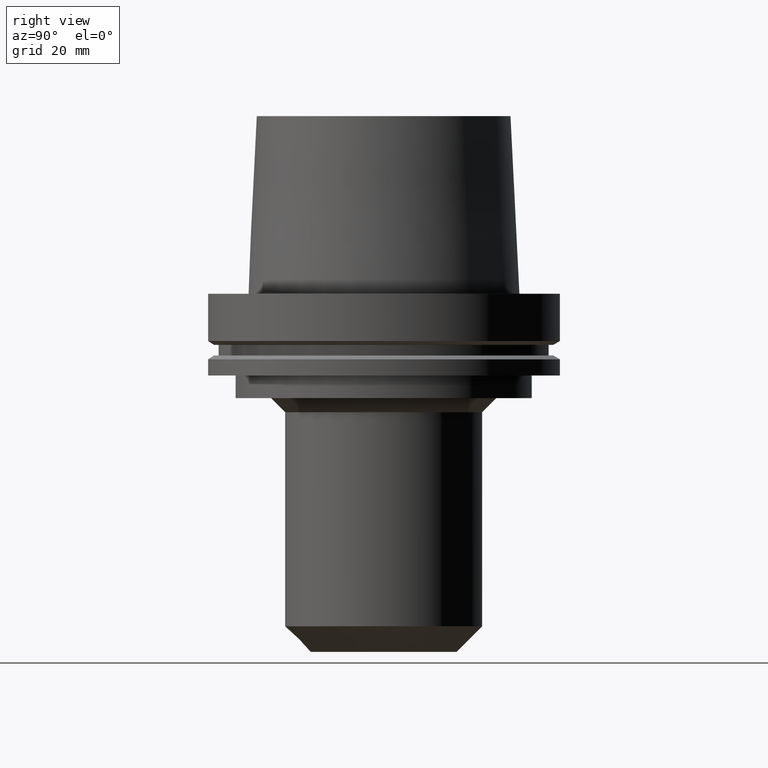
[diagram: clean part render]
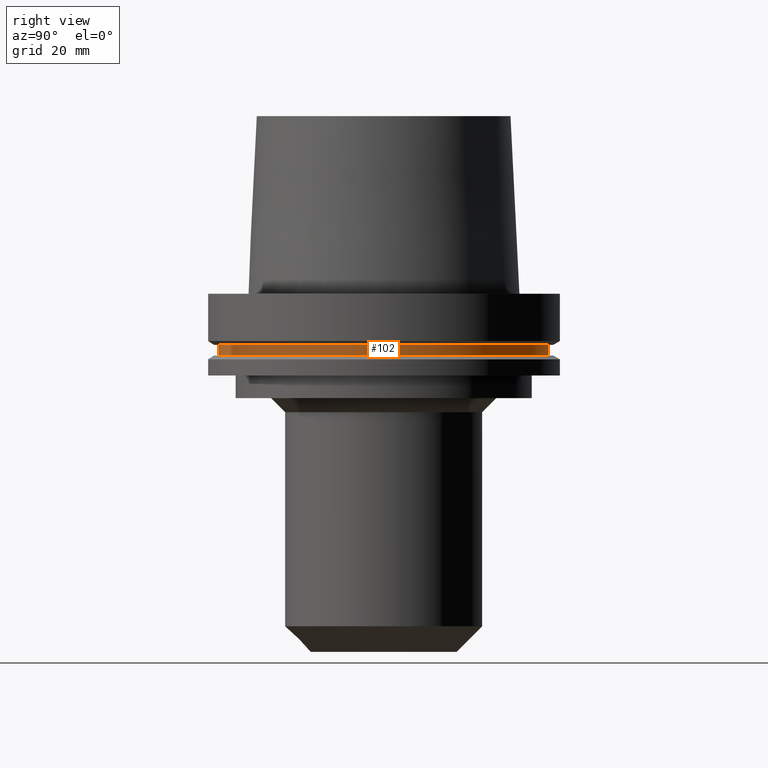
[diagram: same view with one face highlighted and labeled with its STEP entity id]
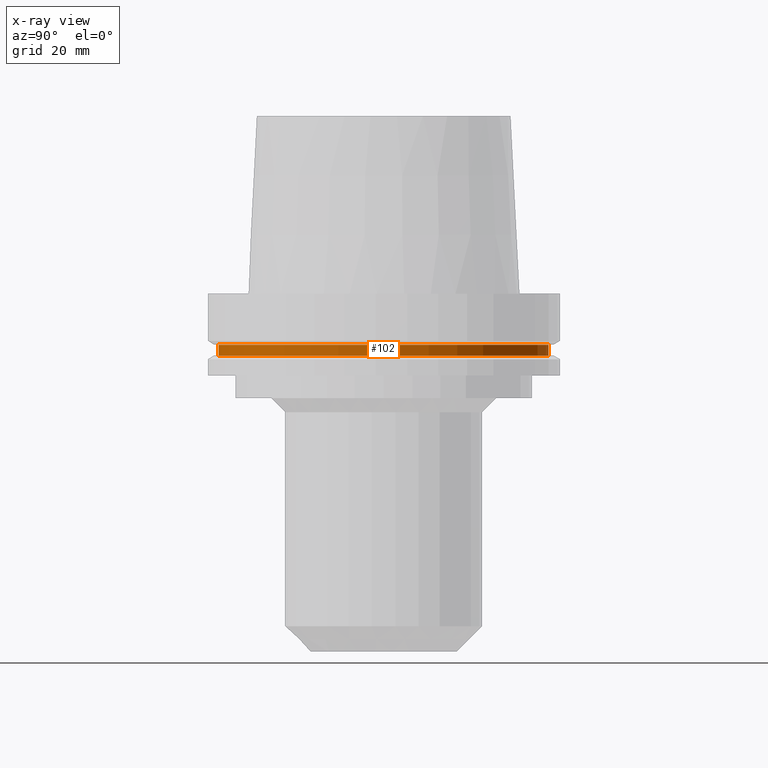
[diagram: x-ray of the same camera — body ghosted, the highlighted face saturated]
A machine part, right view. The second image highlights one B-rep face of the part: STEP entity #102.
The next image is the same camera in x-ray: the body ghosted, the highlighted face saturated — about 0% of this face is hidden behind the body in this view.
In plain terms, the highlighted cylindrical surface (bore or boss wall) has radius 58.5 mm, axis along (0, 0, -1).
Its self-contained STEP definition (entity closure, byte-faithful):
#89=EDGE_CURVE('Unnamed[1]',#210,#210,#211,.T.);
#102=ADVANCED_FACE('Unnamed[1]',(#229,#230),#231,.T.);
#139=EDGE_CURVE('Unnamed[1]',#286,#286,#287,.T.);
#210=VERTEX_POINT('',#363);
#211=CIRCLE('',#364,58.4999999999998);
#229=FACE_BOUND('',#387,.T.);
#230=FACE_BOUND('',#388,.T.);
#231=CYLINDRICAL_SURFACE('',#389,58.4999999999999);
#286=VERTEX_POINT('',#458);
#287=CIRCLE('',#459,58.5);
#363=CARTESIAN_POINT('',(1.33945743656732E-015,58.4999999999998,-21.8749999999984));
#364=AXIS2_PLACEMENT_3D('',#524,#525,#526);
#387=EDGE_LOOP('',(#545));
#388=EDGE_LOOP('',(#546));
#389=AXIS2_PLACEMENT_3D('',#547,#548,#549);
#458=CARTESIAN_POINT('',(1.10983616172739E-015,58.5,-18.1250000000017));
#459=AXIS2_PLACEMENT_3D('',#607,#608,#609);
#524=CARTESIAN_POINT('',(1.33945743656732E-015,2.67891487313464E-015,-21.8749999999984));
#525=DIRECTION('',(6.12323399573677E-017,1.22464679914735E-016,-1.0));
#526=DIRECTION('',(-1.23259516440783E-032,1.0,1.22464679914735E-016));
#545=ORIENTED_EDGE('',*,*,#89,.F.);
#546=ORIENTED_EDGE('',*,*,#139,.T.);
#547=CARTESIAN_POINT('',(1.22464679914736E-015,2.44929359829471E-015,-20.0));
#548=DIRECTION('',(6.12323399573677E-017,1.22464679914735E-016,-1.0));
#549=DIRECTION('',(-1.23259516440783E-032,1.0,1.22464679914735E-016));
#607=CARTESIAN_POINT('',(1.10983616172739E-015,2.21967232345478E-015,-18.1250000000017));
#608=DIRECTION('',(6.12323399573677E-017,1.22464679914735E-016,-1.0));
#609=DIRECTION('',(-1.23259516440783E-032,1.0,1.22464679914735E-016));